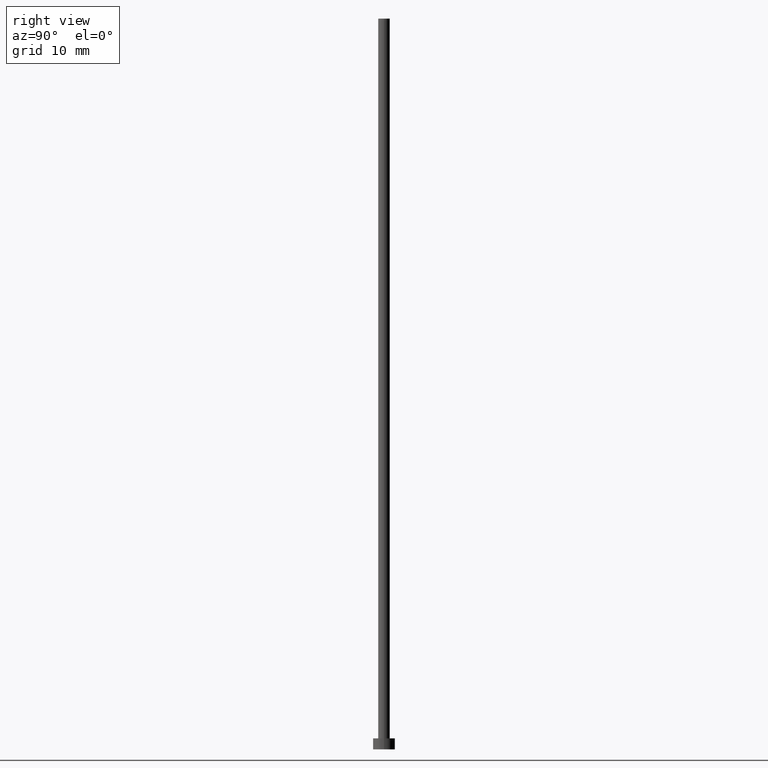
[diagram: clean part render]
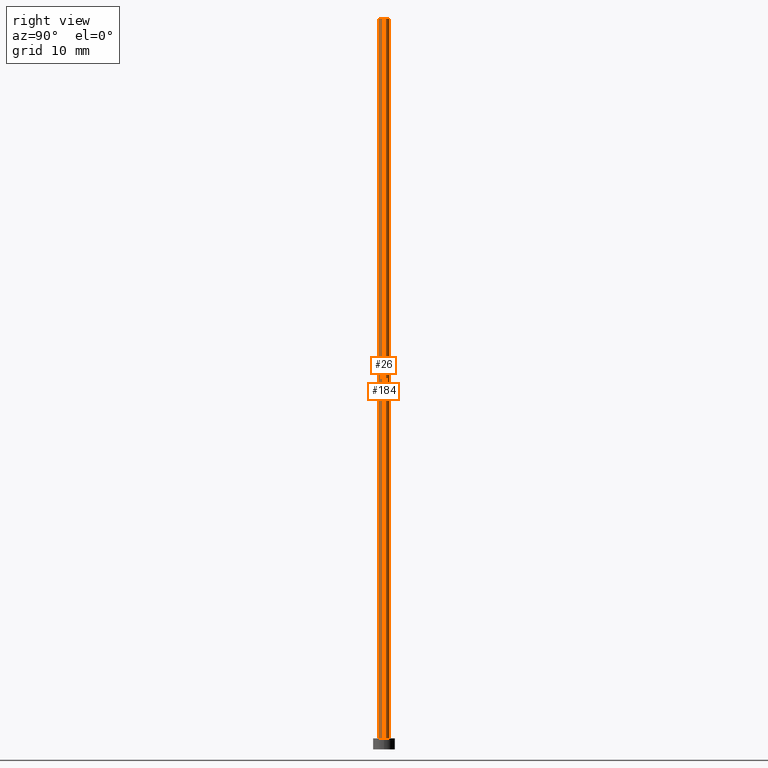
[diagram: same view with one multi-face feature highlighted, each face labeled with its STEP entity id]
A machine part, right view. The highlighted faces form ONE feature: a constant-radius fillet chain: 2 tangent blend faces with common blend radius 0.8 mm. The faces share edges in the B-rep.
Their STEP definitions:
[1] entity #184 (Cylinder):
#20 = VECTOR ( 'NONE', #58, 1000.000000000000000 ) ;
#36 = CARTESIAN_POINT ( 'NONE',  ( -0.8000000000000000444, 0.000000000000000000, 1.500000000000000000 ) ) ;
#40 = CARTESIAN_POINT ( 'NONE',  ( 0.000000000000000000, 0.000000000000000000, 1.500000000000000000 ) ) ;
#41 = EDGE_CURVE ( 'NONE', #90, #156, #177, .T. ) ;
#42 = DIRECTION ( 'NONE',  ( 0.000000000000000000, 0.000000000000000000, 1.000000000000000000 ) ) ;
#46 = EDGE_CURVE ( 'NONE', #56, #79, #202, .T. ) ;
#56 = VERTEX_POINT ( 'NONE', #196 ) ;
#57 = AXIS2_PLACEMENT_3D ( 'NONE', #108, #164, #67 ) ;
#58 = DIRECTION ( 'NONE',  ( -0.000000000000000000, -0.000000000000000000, -1.000000000000000000 ) ) ;
#66 = FACE_OUTER_BOUND ( 'NONE', #94, .T. ) ;
#67 = DIRECTION ( 'NONE',  ( -1.000000000000000000, 0.000000000000000000, 0.000000000000000000 ) ) ;
#68 = VECTOR ( 'NONE', #160, 1000.000000000000000 ) ;
#76 = CIRCLE ( 'NONE', #211, 0.8000000000000000444 ) ;
#79 = VERTEX_POINT ( 'NONE', #36 ) ;
#83 = CARTESIAN_POINT ( 'NONE',  ( 0.000000000000000000, 0.000000000000000000, 100.0000000000000000 ) ) ;
#87 = DIRECTION ( 'NONE',  ( 0.000000000000000000, 0.000000000000000000, 1.000000000000000000 ) ) ;
#90 = VERTEX_POINT ( 'NONE', #239 ) ;
#94 = EDGE_LOOP ( 'NONE', ( #206, #249, #185, #213 ) ) ;
#100 = CARTESIAN_POINT ( 'NONE',  ( -0.8000000000000000444, 0.000000000000000000, 100.0000000000000000 ) ) ;
#105 = CYLINDRICAL_SURFACE ( 'NONE', #57, 0.8000000000000000444 ) ;
#107 = CARTESIAN_POINT ( 'NONE',  ( 0.8000000000000000444, 9.797174393178826150E-17, 1.500000000000000000 ) ) ;
#108 = CARTESIAN_POINT ( 'NONE',  ( 0.000000000000000000, 0.000000000000000000, 100.0000000000000000 ) ) ;
#127 = EDGE_CURVE ( 'NONE', #90, #56, #230, .T. ) ;
#129 = DIRECTION ( 'NONE',  ( 1.000000000000000000, 0.000000000000000000, 0.000000000000000000 ) ) ;
#153 = AXIS2_PLACEMENT_3D ( 'NONE', #83, #87, #161 ) ;
#156 = VERTEX_POINT ( 'NONE', #107 ) ;
#160 = DIRECTION ( 'NONE',  ( -0.000000000000000000, -0.000000000000000000, -1.000000000000000000 ) ) ;
#161 = DIRECTION ( 'NONE',  ( 1.000000000000000000, 0.000000000000000000, 0.000000000000000000 ) ) ;
#164 = DIRECTION ( 'NONE',  ( -0.000000000000000000, -0.000000000000000000, -1.000000000000000000 ) ) ;
#177 = LINE ( 'NONE', #237, #20 ) ;
#184 = ADVANCED_FACE ( 'NONE', ( #66 ), #105, .T. ) ;
#185 = ORIENTED_EDGE ( 'NONE', *, *, #204, .T. ) ;
#196 = CARTESIAN_POINT ( 'NONE',  ( -0.8000000000000000444, 0.000000000000000000, 100.0000000000000000 ) ) ;
#202 = LINE ( 'NONE', #100, #68 ) ;
#204 = EDGE_CURVE ( 'NONE', #156, #79, #76, .T. ) ;
#206 = ORIENTED_EDGE ( 'NONE', *, *, #127, .F. ) ;
#211 = AXIS2_PLACEMENT_3D ( 'NONE', #40, #42, #129 ) ;
#213 = ORIENTED_EDGE ( 'NONE', *, *, #46, .F. ) ;
#230 = CIRCLE ( 'NONE', #153, 0.8000000000000000444 ) ;
#237 = CARTESIAN_POINT ( 'NONE',  ( 0.8000000000000000444, 9.797174393178826150E-17, 100.0000000000000000 ) ) ;
#239 = CARTESIAN_POINT ( 'NONE',  ( 0.8000000000000000444, 9.797174393178826150E-17, 100.0000000000000000 ) ) ;
#249 = ORIENTED_EDGE ( 'NONE', *, *, #41, .T. ) ;
[2] entity #26 (Cylinder):
#10 = DIRECTION ( 'NONE',  ( -0.000000000000000000, -0.000000000000000000, -1.000000000000000000 ) ) ;
#20 = VECTOR ( 'NONE', #58, 1000.000000000000000 ) ;
#26 = ADVANCED_FACE ( 'NONE', ( #173 ), #81, .T. ) ;
#36 = CARTESIAN_POINT ( 'NONE',  ( -0.8000000000000000444, 0.000000000000000000, 1.500000000000000000 ) ) ;
#37 = CARTESIAN_POINT ( 'NONE',  ( 0.000000000000000000, 0.000000000000000000, 1.500000000000000000 ) ) ;
#41 = EDGE_CURVE ( 'NONE', #90, #156, #177, .T. ) ;
#45 = EDGE_CURVE ( 'NONE', #79, #156, #238, .T. ) ;
#46 = EDGE_CURVE ( 'NONE', #56, #79, #202, .T. ) ;
#56 = VERTEX_POINT ( 'NONE', #196 ) ;
#58 = DIRECTION ( 'NONE',  ( -0.000000000000000000, -0.000000000000000000, -1.000000000000000000 ) ) ;
#65 = ORIENTED_EDGE ( 'NONE', *, *, #169, .F. ) ;
#68 = VECTOR ( 'NONE', #160, 1000.000000000000000 ) ;
#75 = ORIENTED_EDGE ( 'NONE', *, *, #41, .F. ) ;
#79 = VERTEX_POINT ( 'NONE', #36 ) ;
#81 = CYLINDRICAL_SURFACE ( 'NONE', #92, 0.8000000000000000444 ) ;
#85 = DIRECTION ( 'NONE',  ( 0.000000000000000000, 0.000000000000000000, 1.000000000000000000 ) ) ;
#90 = VERTEX_POINT ( 'NONE', #239 ) ;
#92 = AXIS2_PLACEMENT_3D ( 'NONE', #159, #10, #103 ) ;
#100 = CARTESIAN_POINT ( 'NONE',  ( -0.8000000000000000444, 0.000000000000000000, 100.0000000000000000 ) ) ;
#103 = DIRECTION ( 'NONE',  ( -1.000000000000000000, 0.000000000000000000, 0.000000000000000000 ) ) ;
#107 = CARTESIAN_POINT ( 'NONE',  ( 0.8000000000000000444, 9.797174393178826150E-17, 1.500000000000000000 ) ) ;
#122 = DIRECTION ( 'NONE',  ( 0.000000000000000000, 0.000000000000000000, 1.000000000000000000 ) ) ;
#146 = DIRECTION ( 'NONE',  ( 1.000000000000000000, 0.000000000000000000, 0.000000000000000000 ) ) ;
#147 = DIRECTION ( 'NONE',  ( 1.000000000000000000, 0.000000000000000000, 0.000000000000000000 ) ) ;
#156 = VERTEX_POINT ( 'NONE', #107 ) ;
#159 = CARTESIAN_POINT ( 'NONE',  ( 0.000000000000000000, 0.000000000000000000, 100.0000000000000000 ) ) ;
#160 = DIRECTION ( 'NONE',  ( -0.000000000000000000, -0.000000000000000000, -1.000000000000000000 ) ) ;
#169 = EDGE_CURVE ( 'NONE', #56, #90, #215, .T. ) ;
#173 = FACE_OUTER_BOUND ( 'NONE', #187, .T. ) ;
#177 = LINE ( 'NONE', #237, #20 ) ;
#181 = CARTESIAN_POINT ( 'NONE',  ( 0.000000000000000000, 0.000000000000000000, 100.0000000000000000 ) ) ;
#182 = ORIENTED_EDGE ( 'NONE', *, *, #45, .T. ) ;
#187 = EDGE_LOOP ( 'NONE', ( #75, #65, #251, #182 ) ) ;
#192 = AXIS2_PLACEMENT_3D ( 'NONE', #37, #122, #146 ) ;
#196 = CARTESIAN_POINT ( 'NONE',  ( -0.8000000000000000444, 0.000000000000000000, 100.0000000000000000 ) ) ;
#202 = LINE ( 'NONE', #100, #68 ) ;
#215 = CIRCLE ( 'NONE', #250, 0.8000000000000000444 ) ;
#237 = CARTESIAN_POINT ( 'NONE',  ( 0.8000000000000000444, 9.797174393178826150E-17, 100.0000000000000000 ) ) ;
#238 = CIRCLE ( 'NONE', #192, 0.8000000000000000444 ) ;
#239 = CARTESIAN_POINT ( 'NONE',  ( 0.8000000000000000444, 9.797174393178826150E-17, 100.0000000000000000 ) ) ;
#250 = AXIS2_PLACEMENT_3D ( 'NONE', #181, #85, #147 ) ;
#251 = ORIENTED_EDGE ( 'NONE', *, *, #46, .T. ) ;